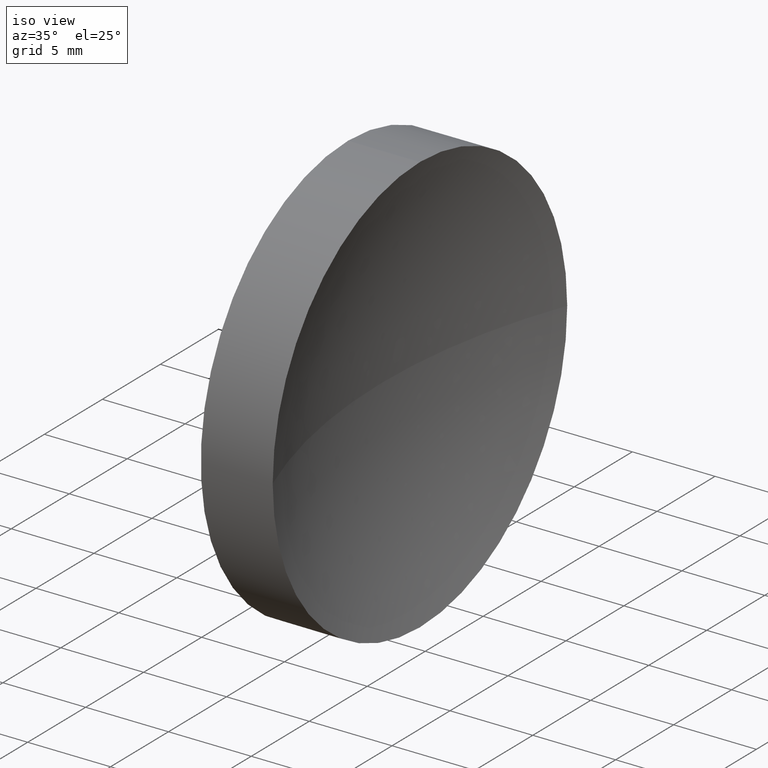
[diagram: clean part render]
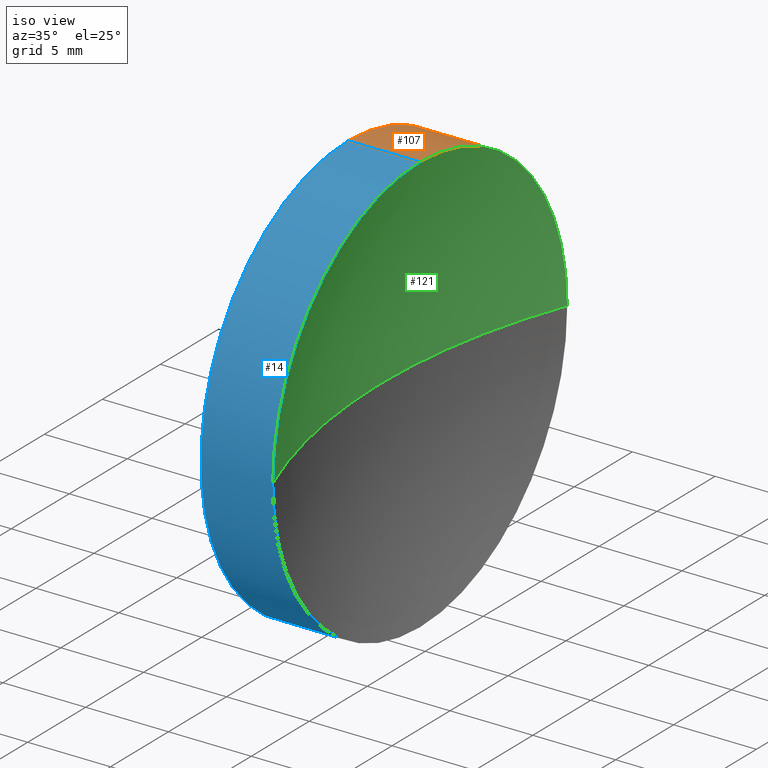
[diagram: same view with three faces highlighted in distinct colors, each labeled with its STEP entity id]
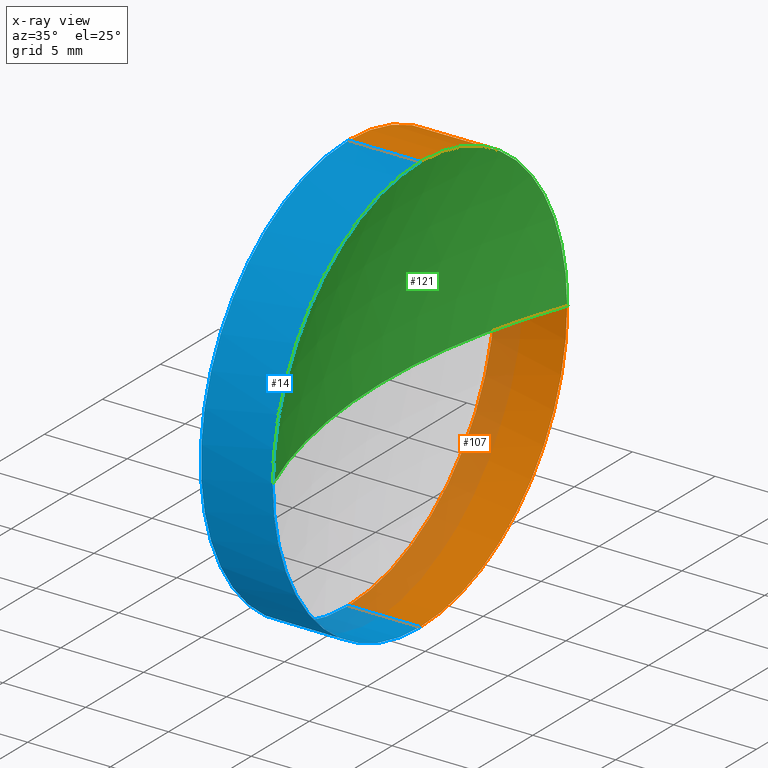
[diagram: x-ray of the same camera — body ghosted, the three highlighted faces saturated]
A machine part, iso view with three faces highlighted in distinct colors.
The next image is the same camera in x-ray (body ghosted, the three faces saturated) — at least one of them is partly hidden behind the body in this view.
Their STEP definitions:

[orange] entity #107 — the highlighted cylindrical surface (partial cylindrical patch) has radius 12.7 mm, axis along (-1, -0, -0).
#5 = EDGE_LOOP ( 'NONE', ( #110, #109, #36, #15, #122 ) ) ;
#6 = CARTESIAN_POINT ( 'NONE',  ( 119.5068341785477100, 71.19398908659370300, 12.70000000000000300 ) ) ;
#7 = CARTESIAN_POINT ( 'NONE',  ( 123.8492034752038400, 71.19398908659370300, 12.70000000000000300 ) ) ;
#10 = AXIS2_PLACEMENT_3D ( 'NONE', #186, #106, #134 ) ;
#11 = CARTESIAN_POINT ( 'NONE',  ( 119.5068341785477100, 71.19398908659370300, -12.70000000000000300 ) ) ;
#13 = DIRECTION ( 'NONE',  ( -1.000000000000000000, -0.0000000000000000000, -0.0000000000000000000 ) ) ;
#15 = ORIENTED_EDGE ( 'NONE', *, *, #43, .F. ) ;
#19 = EDGE_CURVE ( 'NONE', #136, #27, #58, .T. ) ;
#22 = CARTESIAN_POINT ( 'NONE',  ( 111.9552297575605700, 71.19398908659370300, 12.70000000000000300 ) ) ;
#23 = VECTOR ( 'NONE', #97, 1000.000000000000000 ) ;
#24 = DIRECTION ( 'NONE',  ( 0.0000000000000000000, 0.0000000000000000000, 1.000000000000000000 ) ) ;
#27 = VERTEX_POINT ( 'NONE', #149 ) ;
#36 = ORIENTED_EDGE ( 'NONE', *, *, #96, .F. ) ;
#39 = DIRECTION ( 'NONE',  ( 0.0000000000000000000, 0.0000000000000000000, 1.000000000000000000 ) ) ;
#42 = LINE ( 'NONE', #94, #53 ) ;
#43 = EDGE_CURVE ( 'NONE', #52, #138, #63, .T. ) ;
#50 = DIRECTION ( 'NONE',  ( 0.0000000000000000000, 0.0000000000000000000, 1.000000000000000000 ) ) ;
#52 = VERTEX_POINT ( 'NONE', #7 ) ;
#53 = VECTOR ( 'NONE', #70, 1000.000000000000000 ) ;
#55 = EDGE_CURVE ( 'NONE', #52, #136, #57, .T. ) ;
#57 = CIRCLE ( 'NONE', #62, 12.70000000000000300 ) ;
#58 = CIRCLE ( 'NONE', #156, 12.70000000000000300 ) ;
#62 = AXIS2_PLACEMENT_3D ( 'NONE', #179, #82, #24 ) ;
#63 = LINE ( 'NONE', #22, #23 ) ;
#70 = DIRECTION ( 'NONE',  ( -1.000000000000000000, -0.0000000000000000000, -0.0000000000000000000 ) ) ;
#80 = VERTEX_POINT ( 'NONE', #11 ) ;
#82 = DIRECTION ( 'NONE',  ( -1.000000000000000000, -0.0000000000000000000, -0.0000000000000000000 ) ) ;
#85 = CARTESIAN_POINT ( 'NONE',  ( 123.8492034752038400, 83.89398908659370600, 1.555301434917137400E-015 ) ) ;
#92 = CARTESIAN_POINT ( 'NONE',  ( 111.9552297575605700, 71.19398908659370300, 0.0000000000000000000 ) ) ;
#94 = CARTESIAN_POINT ( 'NONE',  ( 111.9552297575605700, 71.19398908659370300, -12.70000000000000300 ) ) ;
#95 = FACE_OUTER_BOUND ( 'NONE', #5, .T. ) ;
#96 = EDGE_CURVE ( 'NONE', #138, #80, #159, .T. ) ;
#97 = DIRECTION ( 'NONE',  ( -1.000000000000000000, -0.0000000000000000000, -0.0000000000000000000 ) ) ;
#101 = CARTESIAN_POINT ( 'NONE',  ( 123.8492034752038400, 71.19398908659370300, 0.0000000000000000000 ) ) ;
#106 = DIRECTION ( 'NONE',  ( -1.000000000000000000, -0.0000000000000000000, -0.0000000000000000000 ) ) ;
#107 = ADVANCED_FACE ( 'NONE', ( #95 ), #169, .T. ) ;
#109 = ORIENTED_EDGE ( 'NONE', *, *, #176, .T. ) ;
#110 = ORIENTED_EDGE ( 'NONE', *, *, #19, .T. ) ;
#122 = ORIENTED_EDGE ( 'NONE', *, *, #55, .T. ) ;
#134 = DIRECTION ( 'NONE',  ( 0.0000000000000000000, 0.0000000000000000000, 1.000000000000000000 ) ) ;
#135 = DIRECTION ( 'NONE',  ( -1.000000000000000000, -0.0000000000000000000, -0.0000000000000000000 ) ) ;
#136 = VERTEX_POINT ( 'NONE', #85 ) ;
#138 = VERTEX_POINT ( 'NONE', #6 ) ;
#149 = CARTESIAN_POINT ( 'NONE',  ( 123.8492034752038400, 71.19398908659370300, -12.70000000000000300 ) ) ;
#156 = AXIS2_PLACEMENT_3D ( 'NONE', #101, #135, #50 ) ;
#159 = CIRCLE ( 'NONE', #10, 12.70000000000000300 ) ;
#169 = CYLINDRICAL_SURFACE ( 'NONE', #177, 12.70000000000000300 ) ;
#176 = EDGE_CURVE ( 'NONE', #27, #80, #42, .T. ) ;
#177 = AXIS2_PLACEMENT_3D ( 'NONE', #92, #13, #39 ) ;
#179 = CARTESIAN_POINT ( 'NONE',  ( 123.8492034752038400, 71.19398908659370300, 0.0000000000000000000 ) ) ;
#186 = CARTESIAN_POINT ( 'NONE',  ( 119.5068341785477100, 71.19398908659370300, 0.0000000000000000000 ) ) ;

[blue] entity #14 — the highlighted cylindrical surface (partial cylindrical patch) has radius 12.7 mm, axis along (-1, -0, -0).
#3 = ORIENTED_EDGE ( 'NONE', *, *, #46, .F. ) ;
#4 = DIRECTION ( 'NONE',  ( 0.0000000000000000000, 0.0000000000000000000, 1.000000000000000000 ) ) ;
#6 = CARTESIAN_POINT ( 'NONE',  ( 119.5068341785477100, 71.19398908659370300, 12.70000000000000300 ) ) ;
#7 = CARTESIAN_POINT ( 'NONE',  ( 123.8492034752038400, 71.19398908659370300, 12.70000000000000300 ) ) ;
#11 = CARTESIAN_POINT ( 'NONE',  ( 119.5068341785477100, 71.19398908659370300, -12.70000000000000300 ) ) ;
#14 = ADVANCED_FACE ( 'NONE', ( #35 ), #103, .T. ) ;
#16 = CIRCLE ( 'NONE', #20, 12.70000000000000300 ) ;
#20 = AXIS2_PLACEMENT_3D ( 'NONE', #75, #81, #4 ) ;
#22 = CARTESIAN_POINT ( 'NONE',  ( 111.9552297575605700, 71.19398908659370300, 12.70000000000000300 ) ) ;
#23 = VECTOR ( 'NONE', #97, 1000.000000000000000 ) ;
#27 = VERTEX_POINT ( 'NONE', #149 ) ;
#35 = FACE_OUTER_BOUND ( 'NONE', #158, .T. ) ;
#42 = LINE ( 'NONE', #94, #53 ) ;
#43 = EDGE_CURVE ( 'NONE', #52, #138, #63, .T. ) ;
#45 = ORIENTED_EDGE ( 'NONE', *, *, #141, .T. ) ;
#46 = EDGE_CURVE ( 'NONE', #80, #138, #181, .T. ) ;
#52 = VERTEX_POINT ( 'NONE', #7 ) ;
#53 = VECTOR ( 'NONE', #70, 1000.000000000000000 ) ;
#59 = ORIENTED_EDGE ( 'NONE', *, *, #176, .F. ) ;
#60 = CARTESIAN_POINT ( 'NONE',  ( 111.9552297575605700, 71.19398908659370300, 0.0000000000000000000 ) ) ;
#63 = LINE ( 'NONE', #22, #23 ) ;
#68 = ORIENTED_EDGE ( 'NONE', *, *, #144, .T. ) ;
#70 = DIRECTION ( 'NONE',  ( -1.000000000000000000, -0.0000000000000000000, -0.0000000000000000000 ) ) ;
#73 = CARTESIAN_POINT ( 'NONE',  ( 123.8492034752038400, 71.19398908659370300, 0.0000000000000000000 ) ) ;
#75 = CARTESIAN_POINT ( 'NONE',  ( 123.8492034752038400, 71.19398908659370300, 0.0000000000000000000 ) ) ;
#80 = VERTEX_POINT ( 'NONE', #11 ) ;
#81 = DIRECTION ( 'NONE',  ( -1.000000000000000000, -0.0000000000000000000, -0.0000000000000000000 ) ) ;
#86 = DIRECTION ( 'NONE',  ( -1.000000000000000000, -0.0000000000000000000, -0.0000000000000000000 ) ) ;
#94 = CARTESIAN_POINT ( 'NONE',  ( 111.9552297575605700, 71.19398908659370300, -12.70000000000000300 ) ) ;
#97 = DIRECTION ( 'NONE',  ( -1.000000000000000000, -0.0000000000000000000, -0.0000000000000000000 ) ) ;
#103 = CYLINDRICAL_SURFACE ( 'NONE', #168, 12.70000000000000300 ) ;
#116 = DIRECTION ( 'NONE',  ( 0.0000000000000000000, 0.0000000000000000000, 1.000000000000000000 ) ) ;
#119 = VERTEX_POINT ( 'NONE', #151 ) ;
#123 = CIRCLE ( 'NONE', #139, 12.70000000000000300 ) ;
#132 = DIRECTION ( 'NONE',  ( 0.0000000000000000000, 0.0000000000000000000, 1.000000000000000000 ) ) ;
#138 = VERTEX_POINT ( 'NONE', #6 ) ;
#139 = AXIS2_PLACEMENT_3D ( 'NONE', #73, #161, #147 ) ;
#141 = EDGE_CURVE ( 'NONE', #27, #119, #123, .T. ) ;
#144 = EDGE_CURVE ( 'NONE', #119, #52, #16, .T. ) ;
#147 = DIRECTION ( 'NONE',  ( 0.0000000000000000000, 0.0000000000000000000, 1.000000000000000000 ) ) ;
#149 = CARTESIAN_POINT ( 'NONE',  ( 123.8492034752038400, 71.19398908659370300, -12.70000000000000300 ) ) ;
#151 = CARTESIAN_POINT ( 'NONE',  ( 123.8492034752038400, 58.49398908659371400, 0.0000000000000000000 ) ) ;
#152 = ORIENTED_EDGE ( 'NONE', *, *, #43, .T. ) ;
#153 = AXIS2_PLACEMENT_3D ( 'NONE', #178, #86, #116 ) ;
#158 = EDGE_LOOP ( 'NONE', ( #59, #45, #68, #152, #3 ) ) ;
#161 = DIRECTION ( 'NONE',  ( -1.000000000000000000, -0.0000000000000000000, -0.0000000000000000000 ) ) ;
#163 = DIRECTION ( 'NONE',  ( -1.000000000000000000, -0.0000000000000000000, -0.0000000000000000000 ) ) ;
#168 = AXIS2_PLACEMENT_3D ( 'NONE', #60, #163, #132 ) ;
#176 = EDGE_CURVE ( 'NONE', #27, #80, #42, .T. ) ;
#178 = CARTESIAN_POINT ( 'NONE',  ( 119.5068341785477100, 71.19398908659370300, 0.0000000000000000000 ) ) ;
#181 = CIRCLE ( 'NONE', #153, 12.70000000000000300 ) ;

[green] entity #121 — the highlighted spherical surface has radius 35.6 mm.
#2 = CIRCLE ( 'NONE', #157, 35.60000000000000900 ) ;
#4 = DIRECTION ( 'NONE',  ( 0.0000000000000000000, 0.0000000000000000000, 1.000000000000000000 ) ) ;
#7 = CARTESIAN_POINT ( 'NONE',  ( 123.8492034752038400, 71.19398908659370300, 12.70000000000000300 ) ) ;
#8 = DIRECTION ( 'NONE',  ( 0.0000000000000000000, -1.224646799147353200E-016, 1.000000000000000000 ) ) ;
#16 = CIRCLE ( 'NONE', #20, 12.70000000000000300 ) ;
#17 = DIRECTION ( 'NONE',  ( 0.0000000000000000000, 0.0000000000000000000, -1.000000000000000000 ) ) ;
#20 = AXIS2_PLACEMENT_3D ( 'NONE', #75, #81, #4 ) ;
#24 = DIRECTION ( 'NONE',  ( 0.0000000000000000000, 0.0000000000000000000, 1.000000000000000000 ) ) ;
#48 = CARTESIAN_POINT ( 'NONE',  ( 157.1068341785477000, 71.19398908659371700, 0.0000000000000000000 ) ) ;
#52 = VERTEX_POINT ( 'NONE', #7 ) ;
#55 = EDGE_CURVE ( 'NONE', #52, #136, #57, .T. ) ;
#56 = CARTESIAN_POINT ( 'NONE',  ( 157.1068341785477000, 71.19398908659371700, 0.0000000000000000000 ) ) ;
#57 = CIRCLE ( 'NONE', #62, 12.70000000000000300 ) ;
#62 = AXIS2_PLACEMENT_3D ( 'NONE', #179, #82, #24 ) ;
#67 = ORIENTED_EDGE ( 'NONE', *, *, #55, .F. ) ;
#71 = CARTESIAN_POINT ( 'NONE',  ( 121.5068341785476900, 71.19398908659371700, 0.0000000000000000000 ) ) ;
#75 = CARTESIAN_POINT ( 'NONE',  ( 123.8492034752038400, 71.19398908659370300, 0.0000000000000000000 ) ) ;
#76 = DIRECTION ( 'NONE',  ( 0.0000000000000000000, 0.0000000000000000000, 1.000000000000000000 ) ) ;
#79 = AXIS2_PLACEMENT_3D ( 'NONE', #56, #17, #111 ) ;
#81 = DIRECTION ( 'NONE',  ( -1.000000000000000000, -0.0000000000000000000, -0.0000000000000000000 ) ) ;
#82 = DIRECTION ( 'NONE',  ( -1.000000000000000000, -0.0000000000000000000, -0.0000000000000000000 ) ) ;
#83 = ORIENTED_EDGE ( 'NONE', *, *, #130, .F. ) ;
#85 = CARTESIAN_POINT ( 'NONE',  ( 123.8492034752038400, 83.89398908659370600, 1.555301434917137400E-015 ) ) ;
#87 = DIRECTION ( 'NONE',  ( 0.0000000000000000000, -1.000000000000000000, 0.0000000000000000000 ) ) ;
#102 = DIRECTION ( 'NONE',  ( 0.0000000000000000000, -1.000000000000000000, -1.224646799147353200E-016 ) ) ;
#105 = EDGE_LOOP ( 'NONE', ( #83, #67, #143, #165 ) ) ;
#111 = DIRECTION ( 'NONE',  ( -1.000000000000000000, 0.0000000000000000000, 0.0000000000000000000 ) ) ;
#115 = CARTESIAN_POINT ( 'NONE',  ( 157.1068341785477000, 71.19398908659371700, 0.0000000000000000000 ) ) ;
#119 = VERTEX_POINT ( 'NONE', #151 ) ;
#121 = ADVANCED_FACE ( 'NONE', ( #173 ), #129, .F. ) ;
#129 = SPHERICAL_SURFACE ( 'NONE', #146, 35.60000000000000900 ) ;
#130 = EDGE_CURVE ( 'NONE', #136, #182, #2, .T. ) ;
#136 = VERTEX_POINT ( 'NONE', #85 ) ;
#143 = ORIENTED_EDGE ( 'NONE', *, *, #144, .F. ) ;
#144 = EDGE_CURVE ( 'NONE', #119, #52, #16, .T. ) ;
#146 = AXIS2_PLACEMENT_3D ( 'NONE', #115, #76, #87 ) ;
#151 = CARTESIAN_POINT ( 'NONE',  ( 123.8492034752038400, 58.49398908659371400, 0.0000000000000000000 ) ) ;
#157 = AXIS2_PLACEMENT_3D ( 'NONE', #48, #8, #102 ) ;
#165 = ORIENTED_EDGE ( 'NONE', *, *, #184, .T. ) ;
#166 = CIRCLE ( 'NONE', #79, 35.60000000000000900 ) ;
#173 = FACE_OUTER_BOUND ( 'NONE', #105, .T. ) ;
#179 = CARTESIAN_POINT ( 'NONE',  ( 123.8492034752038400, 71.19398908659370300, 0.0000000000000000000 ) ) ;
#182 = VERTEX_POINT ( 'NONE', #71 ) ;
#184 = EDGE_CURVE ( 'NONE', #119, #182, #166, .T. ) ;